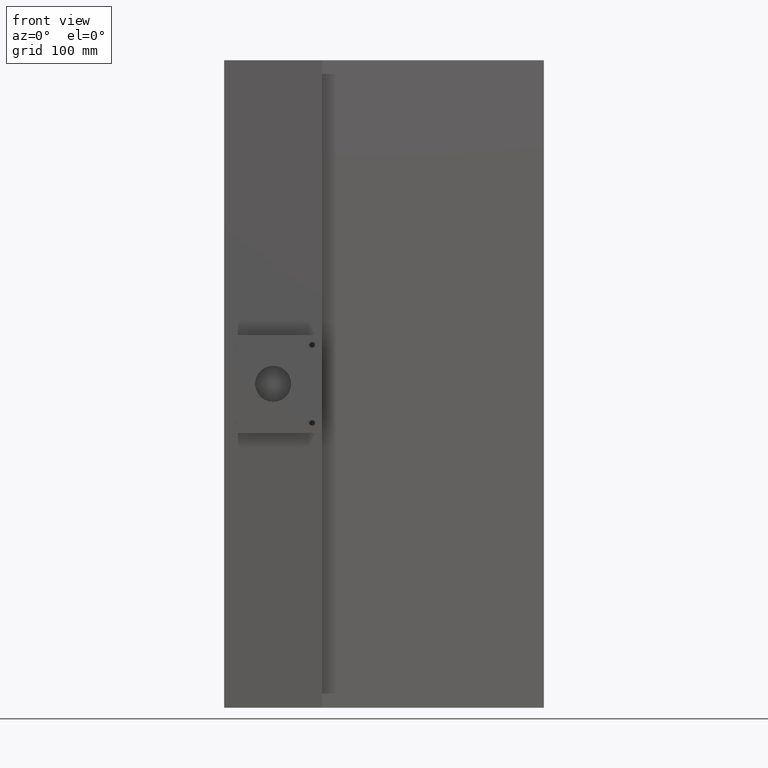
[diagram: clean part render]
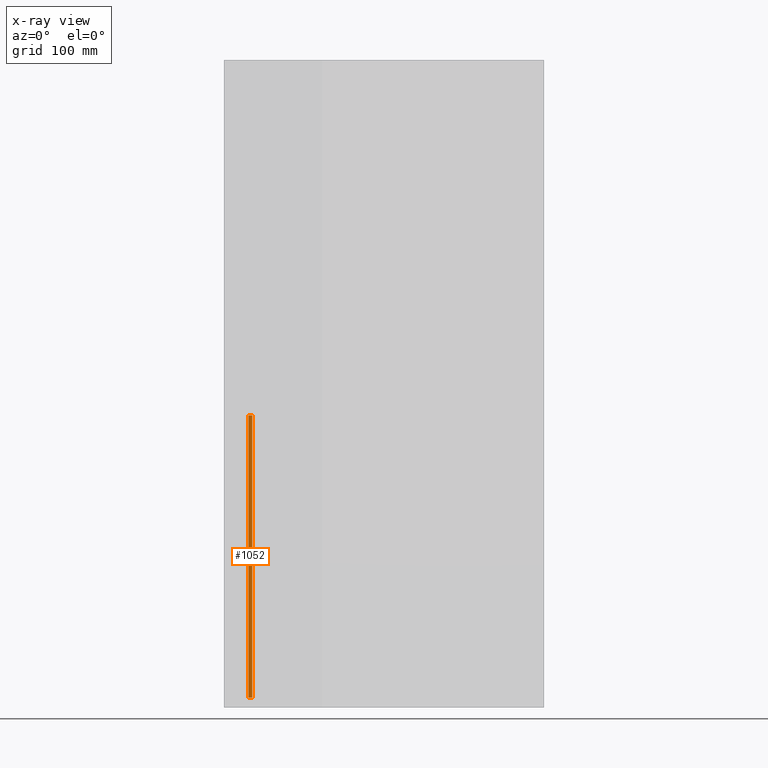
[diagram: x-ray — body ghosted, one internal face saturated and labeled with its STEP entity id]
A machine part, front view, then the same camera in x-ray: the body is ghosted and one INTERNAL B-rep face — a face not visible from any outside direction — is saturated and labeled: STEP entity #1052.
In plain terms, the highlighted planar face has unit normal (0, -0.9999, -0.0153).
Its self-contained STEP definition (entity closure, byte-faithful):
#83 = DIRECTION ( 'NONE',  ( 0.0000000000000000000, -0.01527561169402048100, 0.9998833210366964200 ) ) ;
#134 = DIRECTION ( 'NONE',  ( 0.0000000000000000000, -0.01527561169402048000, 0.9998833210366964200 ) ) ;
#175 = EDGE_LOOP ( 'NONE', ( #642, #296, #2345, #1501 ) ) ;
#184 = VERTEX_POINT ( 'NONE', #1063 ) ;
#206 = VERTEX_POINT ( 'NONE', #2498 ) ;
#296 = ORIENTED_EDGE ( 'NONE', *, *, #2081, .T. ) ;
#510 = CARTESIAN_POINT ( 'NONE',  ( -68.11638246079637300, -93.50000000000000000, -399.9999999999999400 ) ) ;
#556 = VECTOR ( 'NONE', #818, 1000.000000000000000 ) ;
#560 = VECTOR ( 'NONE', #134, 1000.000000000000100 ) ;
#642 = ORIENTED_EDGE ( 'NONE', *, *, #2487, .F. ) ;
#645 = VECTOR ( 'NONE', #1821, 1000.000000000000000 ) ;
#716 = LINE ( 'NONE', #2778, #560 ) ;
#818 = DIRECTION ( 'NONE',  ( -1.000000000000000000, -0.0000000000000000000, -0.0000000000000000000 ) ) ;
#899 = CARTESIAN_POINT ( 'NONE',  ( 305.4194257289940400, -93.50000000000000000, -399.9999999999999400 ) ) ;
#1052 = ADVANCED_FACE ( 'NONE', ( #2889 ), #1907, .F. ) ;
#1063 = CARTESIAN_POINT ( 'NONE',  ( -68.11638246079637300, -98.99986192803544300, -40.00000000000000700 ) ) ;
#1118 = LINE ( 'NONE', #899, #556 ) ;
#1501 = ORIENTED_EDGE ( 'NONE', *, *, #2470, .F. ) ;
#1527 = LINE ( 'NONE', #1885, #2682 ) ;
#1544 = EDGE_CURVE ( 'NONE', #206, #2376, #1527, .T. ) ;
#1639 = CARTESIAN_POINT ( 'NONE',  ( 305.4194257289940400, -93.50000000000000000, -399.9999999999999400 ) ) ;
#1740 = DIRECTION ( 'NONE',  ( 0.0000000000000000000, -0.9998833210366965300, -0.01527561169402048100 ) ) ;
#1741 = DIRECTION ( 'NONE',  ( 0.0000000000000000000, 0.01527561169402048000, -0.9998833210366964200 ) ) ;
#1821 = DIRECTION ( 'NONE',  ( -1.000000000000000000, -0.0000000000000000000, -0.0000000000000000000 ) ) ;
#1885 = CARTESIAN_POINT ( 'NONE',  ( -73.11638246079655800, -93.50000000000000000, -399.9999999999999400 ) ) ;
#1907 = PLANE ( 'NONE',  #2546 ) ;
#2081 = EDGE_CURVE ( 'NONE', #2245, #206, #1118, .T. ) ;
#2245 = VERTEX_POINT ( 'NONE', #510 ) ;
#2345 = ORIENTED_EDGE ( 'NONE', *, *, #1544, .T. ) ;
#2376 = VERTEX_POINT ( 'NONE', #2678 ) ;
#2470 = EDGE_CURVE ( 'NONE', #184, #2376, #2938, .T. ) ;
#2487 = EDGE_CURVE ( 'NONE', #2245, #184, #716, .T. ) ;
#2498 = CARTESIAN_POINT ( 'NONE',  ( -73.11638246079655800, -93.50000000000000000, -399.9999999999999400 ) ) ;
#2546 = AXIS2_PLACEMENT_3D ( 'NONE', #1639, #1740, #1741 ) ;
#2678 = CARTESIAN_POINT ( 'NONE',  ( -73.11638246079655800, -98.99986192803544300, -40.00000000000000700 ) ) ;
#2682 = VECTOR ( 'NONE', #83, 1000.000000000000200 ) ;
#2778 = CARTESIAN_POINT ( 'NONE',  ( -68.11638246079648700, -93.50000000000000000, -399.9999999999999400 ) ) ;
#2809 = CARTESIAN_POINT ( 'NONE',  ( 305.4194257289940400, -98.99986192803544300, -40.00000000000000700 ) ) ;
#2889 = FACE_OUTER_BOUND ( 'NONE', #175, .T. ) ;
#2938 = LINE ( 'NONE', #2809, #645 ) ;